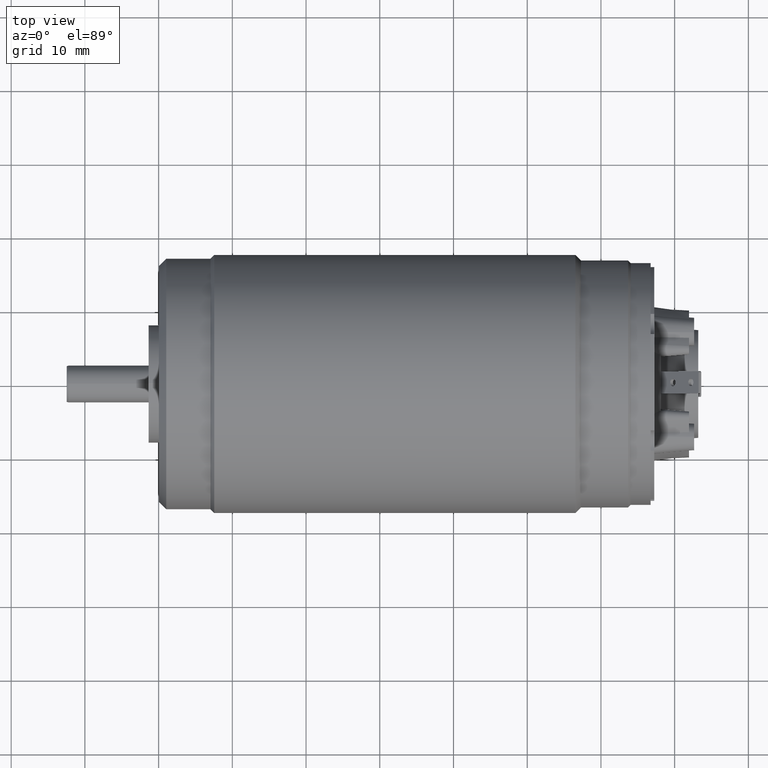
[diagram: clean part render]
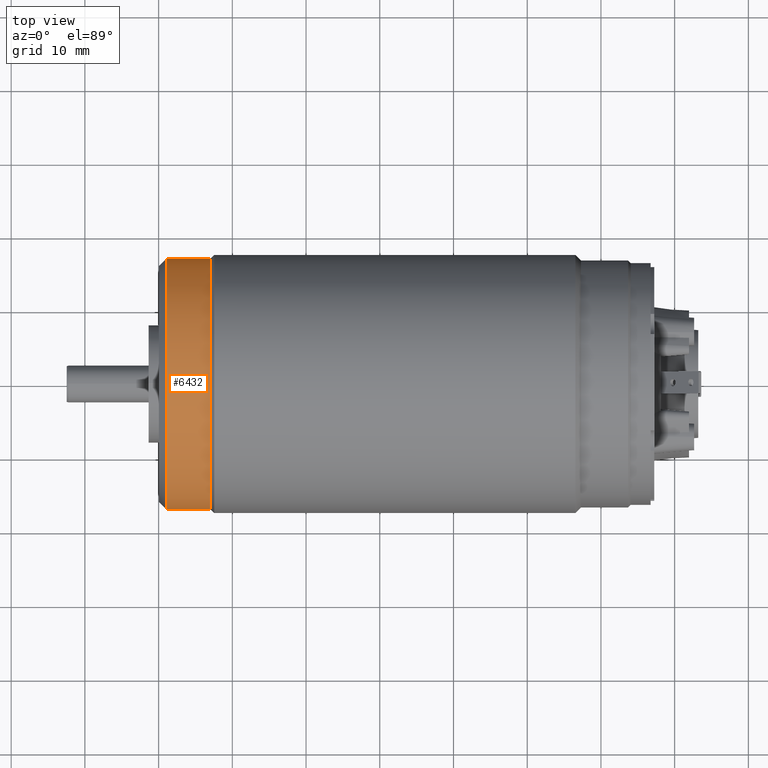
[diagram: same view with one face highlighted and labeled with its STEP entity id]
A machine part, top view. The second image highlights one B-rep face of the part: STEP entity #6432.
In plain terms, the highlighted cylindrical surface (partial cylindrical patch) has radius 17 mm, axis along (-1, 0, 0).
Its self-contained STEP definition (entity closure, byte-faithful):
#2215=DIRECTION('',(-1.E0,0.E0,0.E0));
#2216=VECTOR('',#2215,5.999999999999E0);
#2217=CARTESIAN_POINT('',(-5.296E1,1.7E1,0.E0));
#2218=LINE('',#2217,#2216);
#2219=CARTESIAN_POINT('',(-5.296E1,0.E0,0.E0));
#2220=DIRECTION('',(1.E0,0.E0,0.E0));
#2221=DIRECTION('',(0.E0,1.E0,0.E0));
#2222=AXIS2_PLACEMENT_3D('',#2219,#2220,#2221);
#2224=DIRECTION('',(-1.E0,0.E0,0.E0));
#2225=VECTOR('',#2224,5.999999999999E0);
#2226=CARTESIAN_POINT('',(-5.296E1,-1.7E1,0.E0));
#2227=LINE('',#2226,#2225);
#2242=CARTESIAN_POINT('',(-5.896E1,0.E0,0.E0));
#2243=DIRECTION('',(1.E0,0.E0,0.E0));
#2244=DIRECTION('',(0.E0,1.E0,0.E0));
#2245=AXIS2_PLACEMENT_3D('',#2242,#2243,#2244);
#3388=CARTESIAN_POINT('',(-5.296E1,1.7E1,0.E0));
#3389=VERTEX_POINT('',#3388);
#3390=CARTESIAN_POINT('',(-5.896E1,1.7E1,0.E0));
#3391=VERTEX_POINT('',#3390);
#3406=CARTESIAN_POINT('',(-5.296E1,-1.7E1,0.E0));
#3407=VERTEX_POINT('',#3406);
#3408=CARTESIAN_POINT('',(-5.896E1,-1.7E1,0.E0));
#3409=VERTEX_POINT('',#3408);
#6418=CARTESIAN_POINT('',(1.0075E1,0.E0,0.E0));
#6419=DIRECTION('',(-1.E0,0.E0,0.E0));
#6420=DIRECTION('',(0.E0,1.E0,0.E0));
#6421=AXIS2_PLACEMENT_3D('',#6418,#6419,#6420);
#6422=CYLINDRICAL_SURFACE('',#6421,1.7E1);
#6424=ORIENTED_EDGE('',*,*,#6423,.F.);
#6425=ORIENTED_EDGE('',*,*,#6413,.T.);
#6427=ORIENTED_EDGE('',*,*,#6426,.T.);
#6429=ORIENTED_EDGE('',*,*,#6428,.F.);
#6430=EDGE_LOOP('',(#6424,#6425,#6427,#6429));
#6431=FACE_OUTER_BOUND('',#6430,.F.);
#6432=ADVANCED_FACE('',(#6431),#6422,.T.);
#2223=CIRCLE('',#2222,1.7E1);
#2246=CIRCLE('',#2245,1.7E1);
#6413=EDGE_CURVE('',#3389,#3407,#2223,.T.);
#6423=EDGE_CURVE('',#3389,#3391,#2218,.T.);
#6426=EDGE_CURVE('',#3407,#3409,#2227,.T.);
#6428=EDGE_CURVE('',#3391,#3409,#2246,.T.);